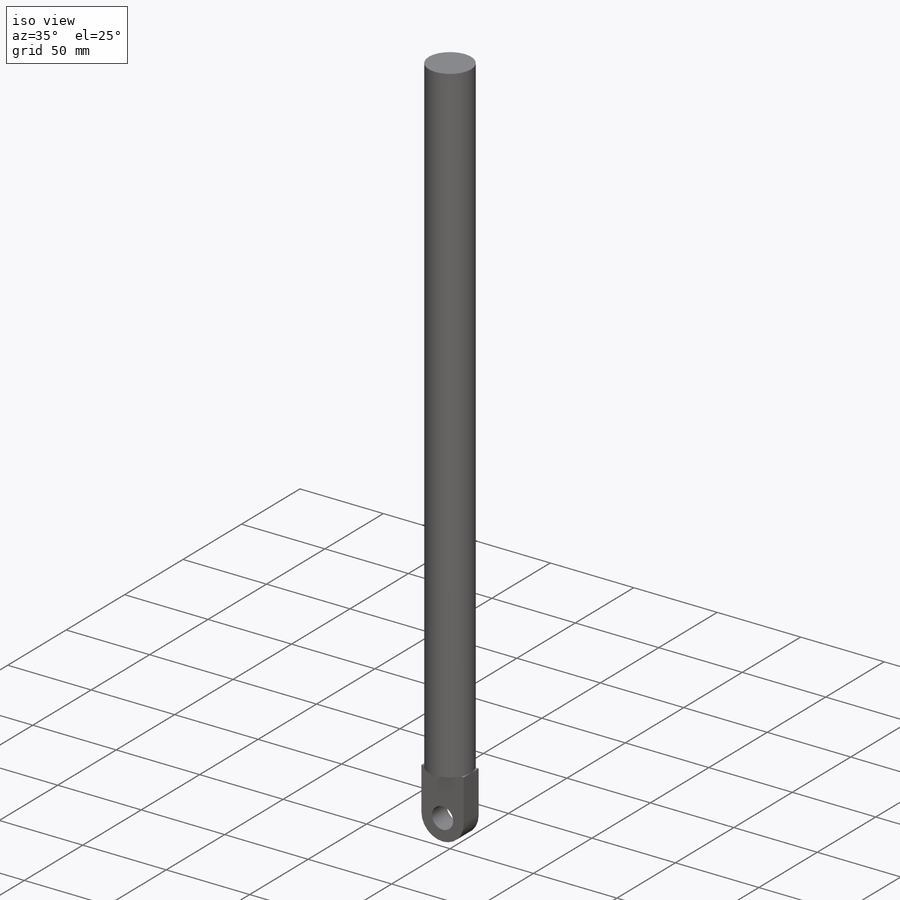
[diagram: iso view]
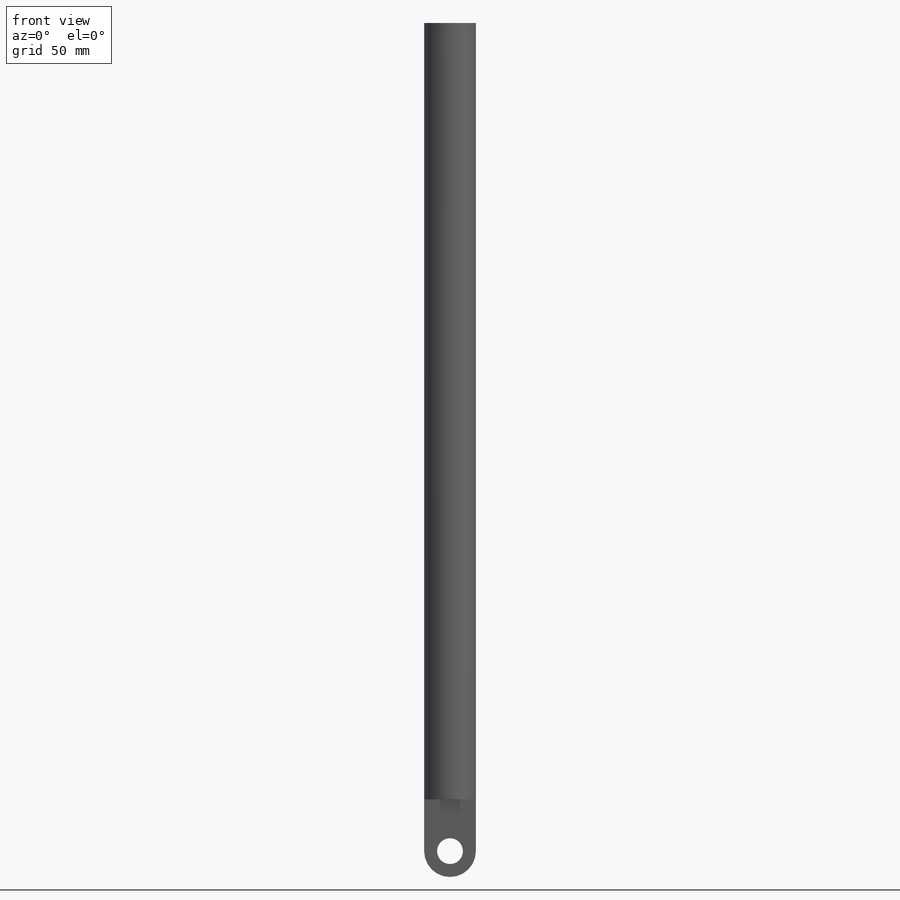
[diagram: front view]
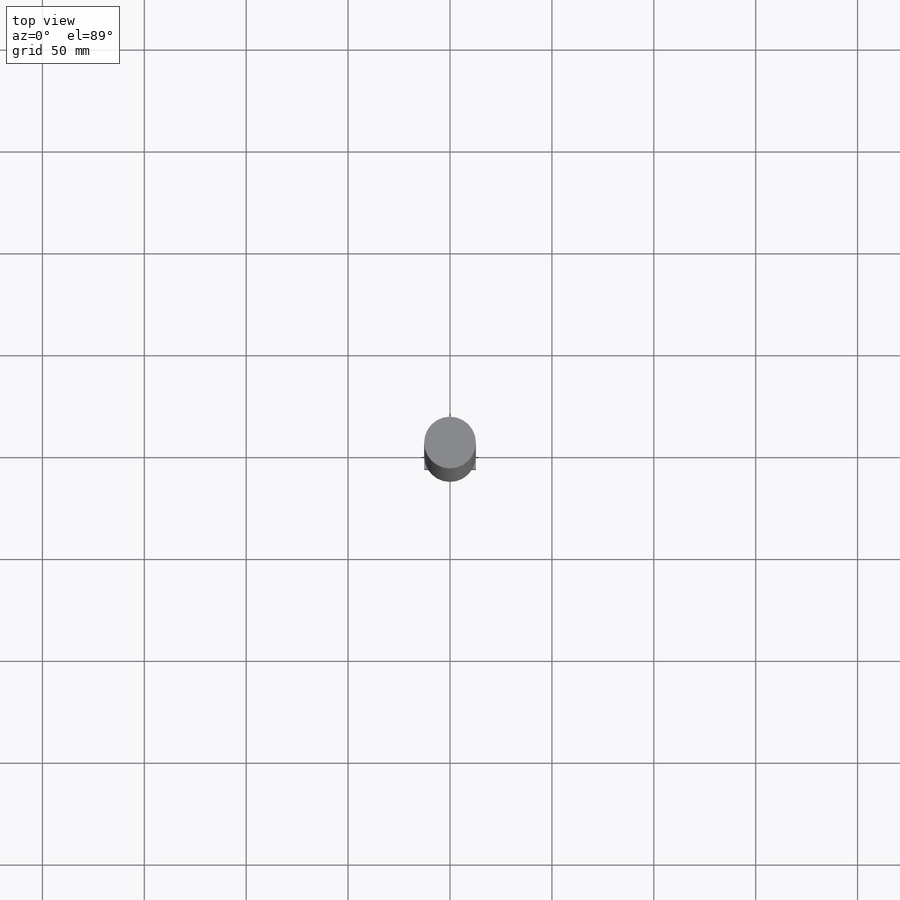
[diagram: top view]
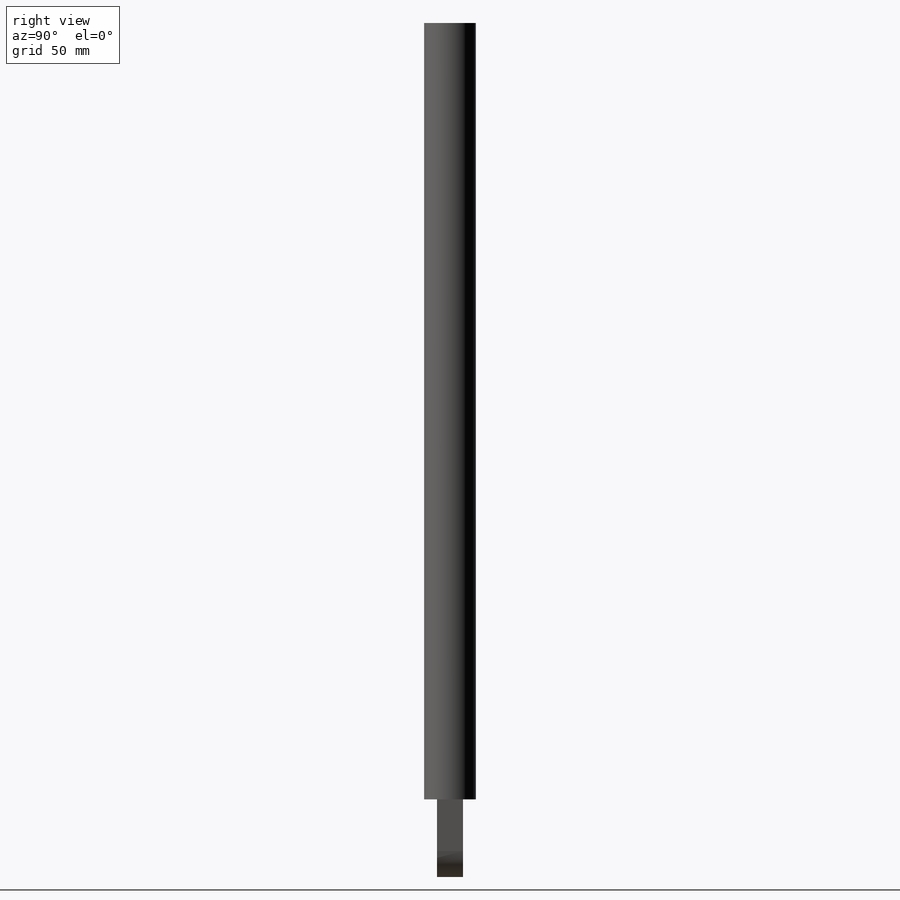
[diagram: right view]
SOLIDWORKS PART (.sldprt)
format: sldprt  version: not decoded by parser v0  size: 122,880 bytes
history: native  units: mm
features: sketch x4, extrude x2, cut_extrude x2, material x1, fillet x1, shell x1 (+14 scaffold rows collapsed)
feature tree (25):
  scaffold x14  (default folders/planes/origin — collapsed)
  material  "6061 Alloy"
  sketch  "Sketch1"  dims[D1=25.4mm]
  extrude  "Extrude1"  Depth=381mm
  sketch  "Sketch2"  dims[D1=25.4mm D2=25.4mm D3=12.7mm D4=12.7mm]
  extrude  "Extrude2"  Depth=38.1mm
  sketch  "Sketch3"  dims[D1=12.7mm D2=6.35mm]
  cut_extrude  "Extrude3"  [1 undecoded]
  fillet  "Fillet1"  Radius=12.7mm
  sketch  "Sketch4"  dims[D1=12.7mm D2=12.7mm D3=12.7mm]
  cut_extrude  "Extrude4"  [1 undecoded]
  shell  "Shell1"  Thickness=2.54mm
decode coverage: 8 of 10 modeling features carry decoded parameters
note: 2 parameter values undecoded
note: suppression state not decoded; provenance and decode notes live in map.json
